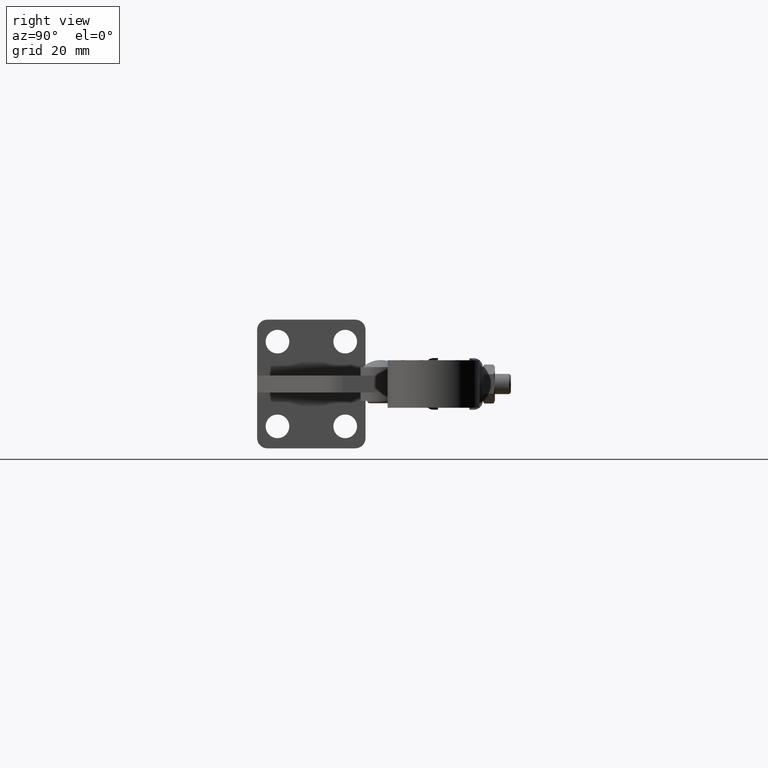
[diagram: clean part render]
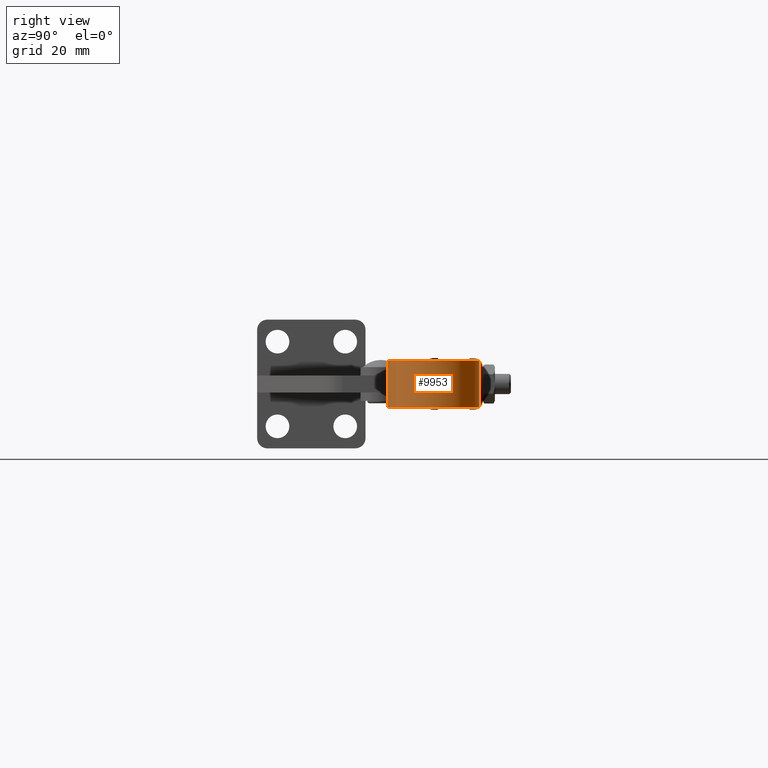
[diagram: same view with one face highlighted and labeled with its STEP entity id]
A machine part, right view. The second image highlights one B-rep face of the part: STEP entity #9953.
In plain terms, the highlighted cylindrical surface (partial cylindrical patch) has radius 13.5 mm, axis along (0, 0, -1).
Its self-contained STEP definition (entity closure, byte-faithful):
#6 = ORIENTED_EDGE ( 'NONE', *, *, #5009, .T. ) ;
#675 = VERTEX_POINT ( 'NONE', #3270 ) ;
#913 = EDGE_LOOP ( 'NONE', ( #6, #5094, #3283, #9196 ) ) ;
#995 = EDGE_CURVE ( 'NONE', #4421, #675, #9799, .T. ) ;
#2154 = DIRECTION ( 'NONE',  ( 1.108958682839140700E-014, 2.932455875418911200E-016, -1.000000000000000000 ) ) ;
#2466 = FACE_OUTER_BOUND ( 'NONE', #913, .T. ) ;
#2909 = AXIS2_PLACEMENT_3D ( 'NONE', #3000, #4237, #9268 ) ;
#3000 = CARTESIAN_POINT ( 'NONE',  ( 146.1995062261631200, 52.01959200017287800, 7.000000000000336600 ) ) ;
#3120 = VERTEX_POINT ( 'NONE', #4018 ) ;
#3270 = CARTESIAN_POINT ( 'NONE',  ( 146.2174974701872000, 65.51958001183949400, -6.999999999999655400 ) ) ;
#3283 = ORIENTED_EDGE ( 'NONE', *, *, #8622, .F. ) ;
#3328 = VERTEX_POINT ( 'NONE', #7427 ) ;
#3498 = CARTESIAN_POINT ( 'NONE',  ( 146.2174974701870300, 65.51958001183948000, 7.000000000000341100 ) ) ;
#3605 = VECTOR ( 'NONE', #9379, 1000.000000000000000 ) ;
#4018 = CARTESIAN_POINT ( 'NONE',  ( 146.7255399257713900, 38.52984446558646400, -6.999999999999658100 ) ) ;
#4225 = DIRECTION ( 'NONE',  ( -0.9999991119752942300, 0.001332684742512657500, -1.111508004977721300E-014 ) ) ;
#4237 = DIRECTION ( 'NONE',  ( -1.108958682839140700E-014, -2.932455875418911200E-016, 1.000000000000000000 ) ) ;
#4292 = CYLINDRICAL_SURFACE ( 'NONE', #8118, 13.50000000000013000 ) ;
#4421 = VERTEX_POINT ( 'NONE', #3498 ) ;
#4456 = CARTESIAN_POINT ( 'NONE',  ( 146.7255399257712200, 38.52984446558646400, 7.000000000000338400 ) ) ;
#4778 = LINE ( 'NONE', #4456, #6363 ) ;
#4979 = DIRECTION ( 'NONE',  ( 1.108958682839140700E-014, 2.932455875418911200E-016, -1.000000000000000000 ) ) ;
#5009 = EDGE_CURVE ( 'NONE', #3120, #675, #5552, .T. ) ;
#5033 = CARTESIAN_POINT ( 'NONE',  ( 146.1995062261632900, 52.01959200017287800, -6.999999999999659800 ) ) ;
#5059 = DIRECTION ( 'NONE',  ( -1.108958682839140700E-014, -2.932455875418911200E-016, 1.000000000000000000 ) ) ;
#5068 = DIRECTION ( 'NONE',  ( 0.9999991119752942300, -0.001332684742512657500, 1.111508004977721300E-014 ) ) ;
#5094 = ORIENTED_EDGE ( 'NONE', *, *, #995, .F. ) ;
#5552 = CIRCLE ( 'NONE', #8866, 13.50000000000013000 ) ;
#6363 = VECTOR ( 'NONE', #2154, 1000.000000000000000 ) ;
#7427 = CARTESIAN_POINT ( 'NONE',  ( 146.7255399257712200, 38.52984446558646400, 7.000000000000338400 ) ) ;
#8027 = CARTESIAN_POINT ( 'NONE',  ( 146.2174974701870300, 65.51958001183948000, 7.000000000000341100 ) ) ;
#8118 = AXIS2_PLACEMENT_3D ( 'NONE', #9668, #4979, #4225 ) ;
#8345 = CIRCLE ( 'NONE', #2909, 13.50000000000013000 ) ;
#8622 = EDGE_CURVE ( 'NONE', #3328, #4421, #8345, .T. ) ;
#8866 = AXIS2_PLACEMENT_3D ( 'NONE', #5033, #5059, #5068 ) ;
#9196 = ORIENTED_EDGE ( 'NONE', *, *, #9474, .T. ) ;
#9268 = DIRECTION ( 'NONE',  ( 0.9999991119752942300, -0.001332684742512657500, 1.111508004977721300E-014 ) ) ;
#9379 = DIRECTION ( 'NONE',  ( 1.108958682839140700E-014, 2.932455875418911200E-016, -1.000000000000000000 ) ) ;
#9474 = EDGE_CURVE ( 'NONE', #3328, #3120, #4778, .T. ) ;
#9668 = CARTESIAN_POINT ( 'NONE',  ( 146.1995062261631200, 52.01959200017287800, 7.000000000000336600 ) ) ;
#9799 = LINE ( 'NONE', #8027, #3605 ) ;
#9953 = ADVANCED_FACE ( 'NONE', ( #2466 ), #4292, .T. ) ;